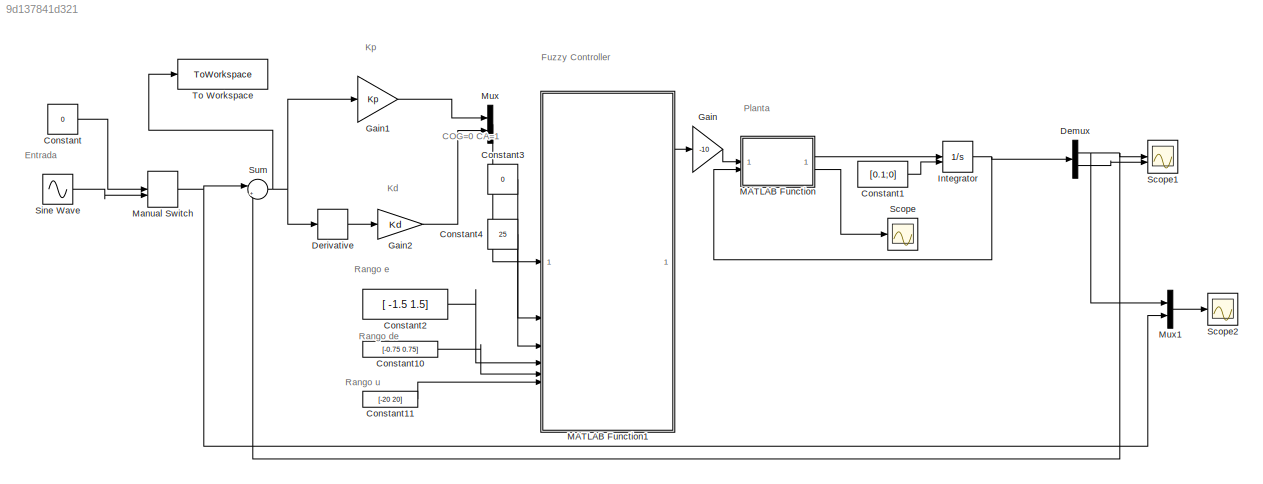
MODEL slx_9d137841d321
KIND model
CONFIG AbsTol = auto
CONFIG EnableMultiTasking = off
CONFIG FixedStep = auto
CONFIG MaxStep = auto
CONFIG MinStep = auto
CONFIG RelTol = 1e-3
CONFIG SampleTimeConstraint = Unconstrained
CONFIG SolverName = ode45
CONFIG StartTime = 0.0
CONFIG StopTime = 10
BLOCK [Constant] Constant
  Value = 0
BLOCK [Constant] Constant1
  Value = [0.1;0]
BLOCK [Constant] Constant10
  Value = [-0.75 0.75]
BLOCK [Constant] Constant11
  Value = [-20   20]
BLOCK [Constant] Constant2
  Value = [ -1.5 1.5]
BLOCK [Constant] Constant3
  Value = 0
BLOCK [Constant] Constant4
  Value = 25
BLOCK [Demux] Demux
  Outputs = 2
BLOCK [Derivative] Derivative
BLOCK [Gain] Gain
  Gain = -10
BLOCK [Gain] Gain1
  Gain = Kp
BLOCK [Gain] Gain2
  Gain = Kd
BLOCK [Integrator] Integrator
  InitialConditionSource = external
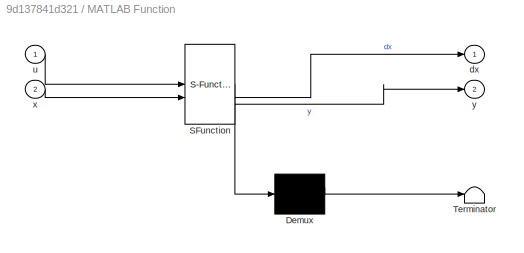
BLOCK [SubSystem] MATLAB Function
  ErrorFcn = Stateflow.Translate.translate
  PermitHierarchicalResolution = ExplicitOnly
  SFBlockType = MATLAB Function
  TreatAsAtomicUnit = on
BLOCK [Demux] MATLAB Function/ Demux 
  Outputs = 1
BLOCK [S-Function] MATLAB Function/ SFunction 
  EnableBusSupport = on
  FunctionName = sf_sfun
  PortCounts = [2 3]
  SFcnIsStateOwnerBlock = off
  SFunctionDeploymentMode = off
  Tag = Stateflow S-Function 2
BLOCK [Terminator] MATLAB Function/ Terminator 
BLOCK [Outport] MATLAB Function/dx
BLOCK [Inport] MATLAB Function/u
BLOCK [Inport] MATLAB Function/x
  Port = 2
BLOCK [Outport] MATLAB Function/y
  Port = 2
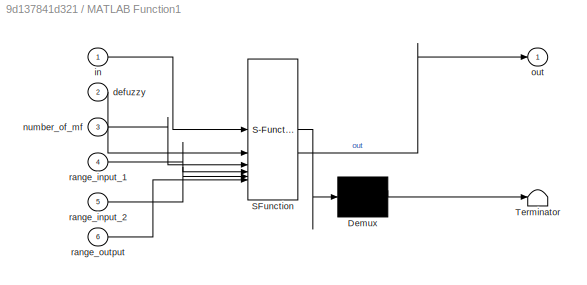
BLOCK [SubSystem] MATLAB Function1
  ErrorFcn = Stateflow.Translate.translate
  PermitHierarchicalResolution = ExplicitOnly
  SFBlockType = MATLAB Function
  TreatAsAtomicUnit = on
BLOCK [Demux] MATLAB Function1/ Demux 
  Outputs = 1
BLOCK [S-Function] MATLAB Function1/ SFunction 
  EnableBusSupport = on
  FunctionName = sf_sfun
  PortCounts = [6 2]
  SFcnIsStateOwnerBlock = off
  SFunctionDeploymentMode = off
  Tag = Stateflow S-Function 1
BLOCK [Terminator] MATLAB Function1/ Terminator 
BLOCK [Inport] MATLAB Function1/defuzzy
  Port = 2
BLOCK [Inport] MATLAB Function1/in
BLOCK [Inport] MATLAB Function1/number_of_mf
  Port = 3
BLOCK [Outport] MATLAB Function1/out
BLOCK [Inport] MATLAB Function1/range_input_1
  Port = 4
BLOCK [Inport] MATLAB Function1/range_input_2
  Port = 5
BLOCK [Inport] MATLAB Function1/range_output
  Port = 6
BLOCK [ManualSwitch] Manual Switch
  CurrentSetting = 0
BLOCK [Mux] Mux
  DisplayOption = bar
  Inputs = 2
BLOCK [Mux] Mux1
  DisplayOption = bar
  Inputs = 2
BLOCK [Scope] Scope
  Floating = off
  NumInputPorts = 1
  ScopeSpecificationString = Simulink.scopes.TimeScopeBlockCfg('CurrentConfiguration', extmgr.ConfigurationSet(extmgr.Configuration('Core','General UI',true),extmgr.Configuration('Core','Source UI',true),extmgr.Configuration('Sources','WiredSimulink',true),extmgr.Configuration('Visuals','Time Domain',true,'SerializedDisplays',{struct('MinYLimReal','-0.32016','MaxYLimReal','0.36067','YLabelReal','','MinYLimMag','0.00000','MaxY...<+1459ch>
BLOCK [Scope] Scope1
  Floating = off
  NumInputPorts = 2
  ScopeSpecificationString = Simulink.scopes.TimeScopeBlockCfg('CurrentConfiguration', extmgr.ConfigurationSet(extmgr.Configuration('Core','General UI',true),extmgr.Configuration('Core','Source UI',true),extmgr.Configuration('Sources','WiredSimulink',true,'DataLoggingVariableName','ScopeData1'),extmgr.Configuration('Visuals','Time Domain',true,'SerializedDisplays',{struct('MinYLimReal','-0.76775','MaxYLimReal','11.04087','YLa...<+2269ch>
BLOCK [Scope] Scope2
  Floating = off
  NumInputPorts = 1
  ScopeSpecificationString = Simulink.scopes.TimeScopeBlockCfg('CurrentConfiguration', extmgr.ConfigurationSet(extmgr.Configuration('Core','General UI',true),extmgr.Configuration('Core','Source UI',true),extmgr.Configuration('Sources','WiredSimulink',true,'DataLoggingVariableName','ScopeData1'),extmgr.Configuration('Visuals','Time Domain',true,'SerializedDisplays',{struct('MinYLimReal','-0.5694','MaxYLimReal','0.41003','YLabe...<+1486ch>
BLOCK [Sin] Sine Wave
  Amplitude = .25
  Frequency = 4
  SampleTime = 0
BLOCK [Sum] Sum
  Inputs = |+-
BLOCK [ToWorkspace] To Workspace
  FixptAsFi = on
  MaxDataPoints = inf
  SampleTime = -1
  VariableName = track_error
ANNOTATION (root): COG=0 CA=1
ANNOTATION (root): Entrada
ANNOTATION (root): Fuzzy Controller
ANNOTATION (root): Kd
ANNOTATION (root): Kp
ANNOTATION (root): Planta
ANNOTATION (root): Rango de
ANNOTATION (root): Rango e
ANNOTATION (root): Rango u
LINE Constant10:1 -> MATLAB Function1:5
LINE Constant11:1 -> MATLAB Function1:6
LINE Constant1:1 -> Integrator:2
LINE Constant2:1 -> MATLAB Function1:4
LINE Constant3:1 -> MATLAB Function1:2
LINE Constant4:1 -> MATLAB Function1:3
LINE Constant:1 -> Manual Switch:1
NET Demux:1 -> Mux1:1, Scope1:1, Sum:2
LINE Demux:2 -> Scope1:2
LINE Derivative:1 -> Gain2:1
LINE Gain1:1 -> Mux:1
LINE Gain2:1 -> Mux:2
LINE Gain:1 -> MATLAB Function:1
NET Integrator:1 -> Demux:1, MATLAB Function:2
LINE MATLAB Function1:1 -> Gain:1
LINE MATLAB Function:1 -> Integrator:1
LINE MATLAB Function:2 -> Scope:1
NET Manual Switch:1 -> Mux1:2, Sum:1
LINE Mux1:1 -> Scope2:1
LINE Mux:1 -> MATLAB Function1:1
LINE Sine Wave:1 -> Manual Switch:2
NET Sum:1 -> Derivative:1, Gain1:1, To Workspace:1
note: NET lines group one-source signal fan-out (src -> all destinations, sorted); 1:1 wires keep LINE
CHART MATLAB Function1 states=1 transitions=1
  STATE_LABEL 'eML_blk_kernel()'
  STATE_LABEL 'SCRIPT:\nfunction out = fcn(in, defuzzy, number_of_mf, range_input_1, range_input_2, range_output)\n% in: [error, d_error]\n% defuzzy: 0 = COG, 1 = CA\n% range_input_1/2: [min, max]\n% range_output: [min, max]\n\n% === 1. Divisiones (uniformes, como linspace) ===\nn = number_of_mf;\ndiv1    = linspace(range_input_1(1), range_input_1(2), n);  % error\ndiv2    = linspace(range_input_2(1), range_input_2(2), n)...<+2458ch>'
CHART MATLAB Function states=1 transitions=1
  STATE_LABEL 'eML_blk_kernel()'
  STATE_LABEL 'SCRIPT:\nfunction [dx, y] = fcn(u,x)\n\nk=2;\nb=0.2;\nm=1;\nx1=x(1);\nx2=x(2);\ndx1=x2;\ndx2=b*x2/m-k*x1/m+u/m;\ndx = [dx1;dx2];\n\ny = x1;\n\n'
CHART  states=0 transitions=0
CHART  states=0 transitions=0
